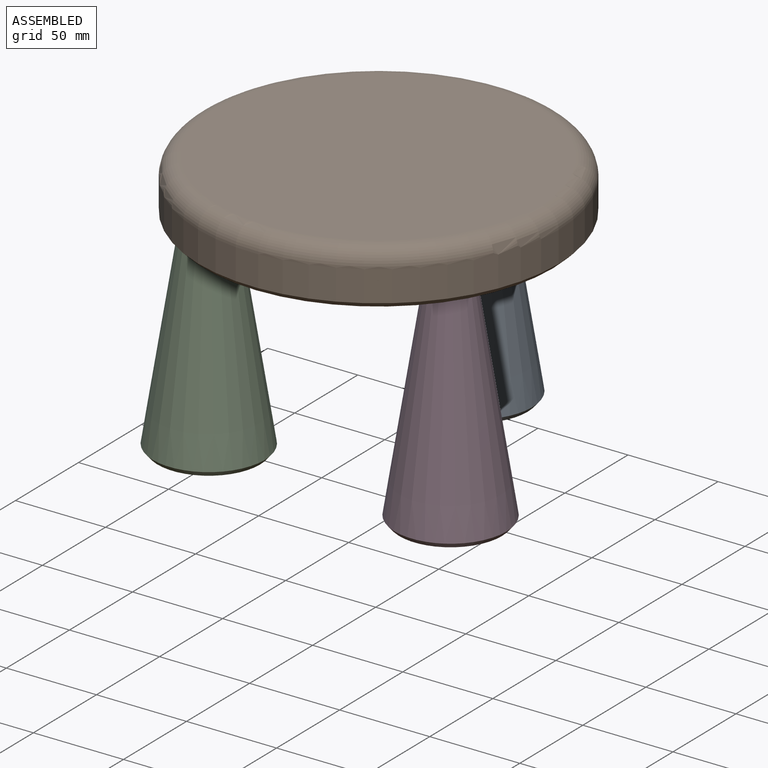
[diagram: assembled view]
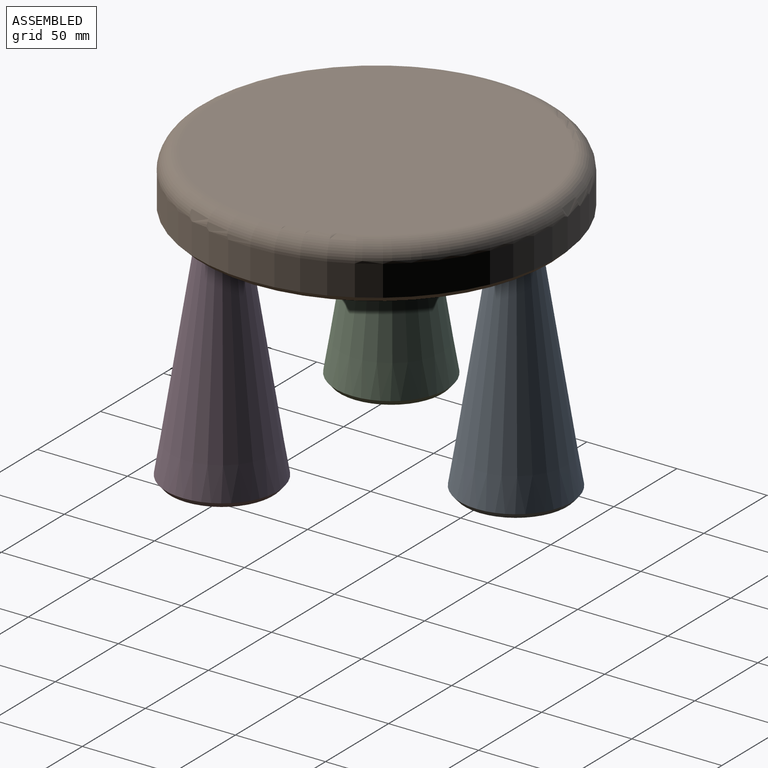
[diagram: assembled view, second angle]
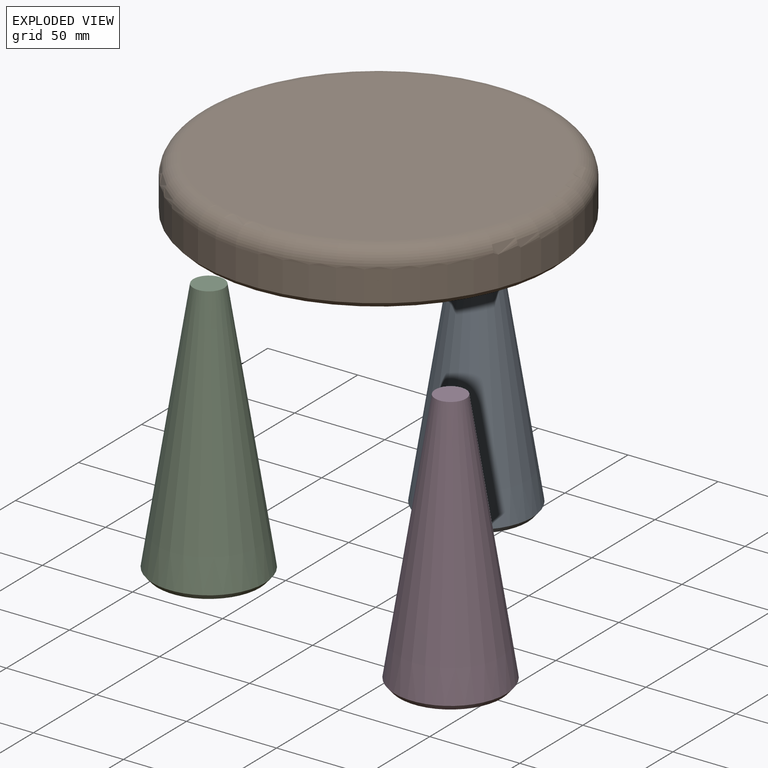
[diagram: exploded view]
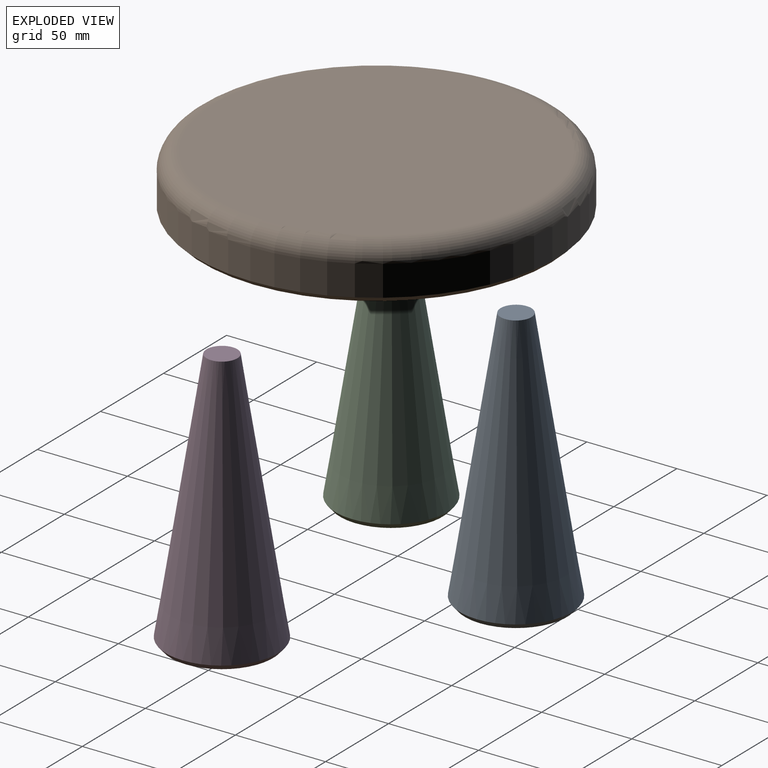
[diagram: exploded view, second angle]
ASSEMBLY  parts=4 mates=3
PART A: 4 faces, bbox 62.1x62.1x145 mm
  f0: cone r=12.5mm half-angle=9deg, axis (0,0,-1), area 17880.4mm2, adj f2,f3
  f1: plane 57.01x57.01mm, normal (0,0,-1), area 2552.9mm2, adj f3
  f2: plane 17.08x17.08mm, normal (0,0,1), area 229.1mm2, adj f0
  f3: cone r=31.04mm half-angle=40.5deg, axis (0,0,1), area 728.9mm2, adj f0,f1
PART B: 11 faces, bbox 216.5x216.5x30 mm
  f0: plane 194x194mm, normal (0,0,-1), area 28086.6mm2, adj f3,f5,f7,f10
  f1: cylinder r=100mm len=200mm, axis (0,0,-1), area 10681.4mm2, adj f9,f10
  f2: plane 180x180mm, normal (0,0,1), area 25446.9mm2, adj f9
  f3: cone r=12.5mm half-angle=9deg, axis (0,0,-1), area 1831.6mm2, adj f0,f4
  f4: plane 16.13x16.13mm, normal (0,0,-1), area 204.4mm2, adj f3
  f5: cone r=12.5mm half-angle=9deg, axis (0,0,-1), area 1831.6mm2, adj f0,f6
  f6: plane 16.13x16.13mm, normal (0,0,-1), area 204.4mm2, adj f5
  f7: cone r=12.5mm half-angle=9deg, axis (0,0,-1), area 1831.6mm2, adj f0,f8
  f8: plane 16.13x16.13mm, normal (0,0,-1), area 204.4mm2, adj f7
  f9: torus R=90mm, axis (0,0,1), area 9511mm2, adj f1,f2
  f10: cone r=100mm half-angle=45deg, axis (0,0,1), area 2625.7mm2, adj f0,f1
PART C: same geometry as A
PART D: same geometry as A
PLACE A t=(0,2.5,0)mm
PLACE B t=(-136.36,-167.2,0)mm fixed
PLACE C t=(-67.12,-113.75,0)mm
PLACE D t=(67.12,-113.75,0)mm
MATE fastened A.f0 <-> B.f3  axis (0,0,-1) through (-136.36,-89.7,25)mm
MATE fastened C.f0 <-> B.f5  axis (0,0,1) through (-203.48,-205.95,25)mm
MATE fastened D.f0 <-> B.f7  axis (0,0,-1) through (-69.24,-205.95,25)mm
